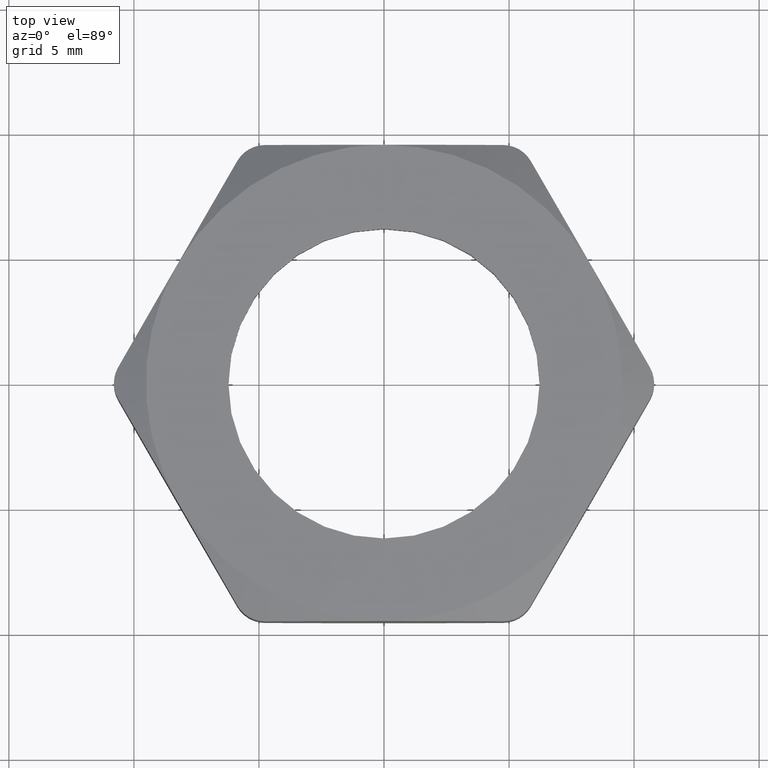
[diagram: clean part render]
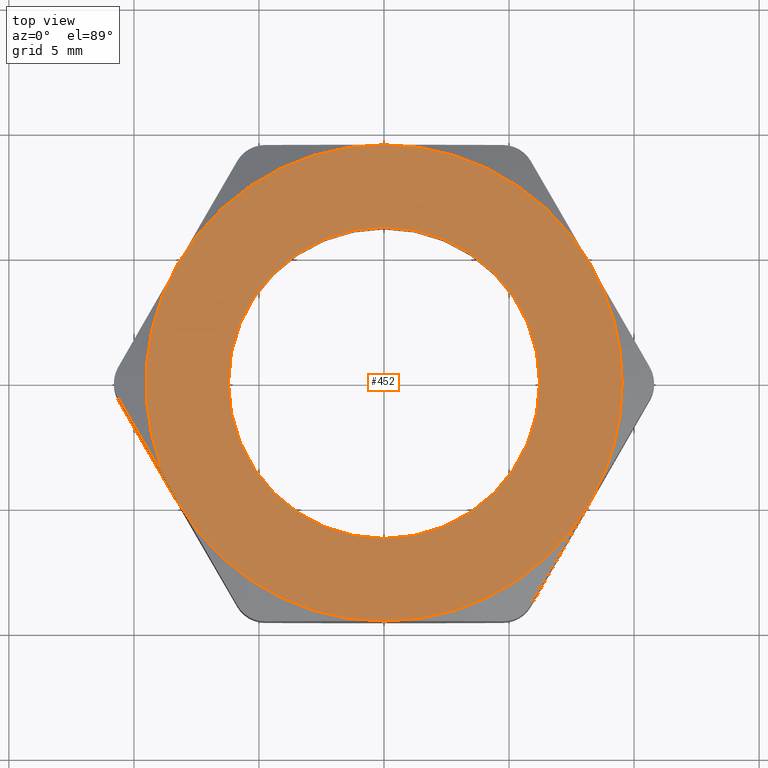
[diagram: same view with one face highlighted and labeled with its STEP entity id]
A machine part, top view. The second image highlights one B-rep face of the part: STEP entity #452.
In plain terms, the highlighted planar face has unit normal (0, 0, -1).
Its self-contained STEP definition (entity closure, byte-faithful):
#78 = EDGE_CURVE ( 'NONE', #79, #80, #995, .T. ) ;
#79 = VERTEX_POINT ( 'NONE', #991 ) ;
#80 = VERTEX_POINT ( 'NONE', #990 ) ;
#245 = VERTEX_POINT ( 'NONE', #1183 ) ;
#270 = VERTEX_POINT ( 'NONE', #1376 ) ;
#280 = VERTEX_POINT ( 'NONE', #1335 ) ;
#291 = VERTEX_POINT ( 'NONE', #1309 ) ;
#341 = VERTEX_POINT ( 'NONE', #1496 ) ;
#393 = VERTEX_POINT ( 'NONE', #1705 ) ;
#403 = VERTEX_POINT ( 'NONE', #1694 ) ;
#452 = ADVANCED_FACE ( 'NONE', ( #1507, #1506 ), #1503, .F. ) ;
#462 = EDGE_CURVE ( 'NONE', #393, #280, #1668, .T. ) ;
#521 = EDGE_CURVE ( 'NONE', #403, #291, #1807, .T. ) ;
#522 = ORIENTED_EDGE ( 'NONE', *, *, #588, .T. ) ;
#524 = ORIENTED_EDGE ( 'NONE', *, *, #587, .F. ) ;
#546 = EDGE_CURVE ( 'NONE', #270, #393, #1954, .T. ) ;
#547 = ORIENTED_EDGE ( 'NONE', *, *, #462, .T. ) ;
#548 = ORIENTED_EDGE ( 'NONE', *, *, #549, .T. ) ;
#549 = EDGE_CURVE ( 'NONE', #280, #341, #1879, .T. ) ;
#550 = EDGE_LOOP ( 'NONE', ( #551, #555, #522, #589, #591, #547, #548 ) ) ;
#551 = ORIENTED_EDGE ( 'NONE', *, *, #554, .T. ) ;
#554 = EDGE_CURVE ( 'NONE', #341, #403, #1870, .T. ) ;
#555 = ORIENTED_EDGE ( 'NONE', *, *, #521, .T. ) ;
#582 = ORIENTED_EDGE ( 'NONE', *, *, #78, .F. ) ;
#587 = EDGE_CURVE ( 'NONE', #80, #79, #1745, .T. ) ;
#588 = EDGE_CURVE ( 'NONE', #291, #245, #1477, .T. ) ;
#589 = ORIENTED_EDGE ( 'NONE', *, *, #590, .T. ) ;
#590 = EDGE_CURVE ( 'NONE', #245, #270, #2100, .T. ) ;
#591 = ORIENTED_EDGE ( 'NONE', *, *, #546, .T. ) ;
#596 = EDGE_LOOP ( 'NONE', ( #582, #524 ) ) ;
#990 = CARTESIAN_POINT ( 'NONE',  ( 0.2450000000000000000, 3.122849337825749900E-017, 0.2000000000000000100 ) ) ;
#991 = CARTESIAN_POINT ( 'NONE',  ( -0.2450000000000000000, 0.0000000000000000000, 0.2000000000000000100 ) ) ;
#992 = DIRECTION ( 'NONE',  ( 1.000000000000000000, 0.0000000000000000000, 0.0000000000000000000 ) ) ;
#993 = DIRECTION ( 'NONE',  ( 0.0000000000000000000, 0.0000000000000000000, 1.000000000000000000 ) ) ;
#994 = AXIS2_PLACEMENT_3D ( 'NONE', #1001, #993, #992 ) ;
#995 = CIRCLE ( 'NONE', #994, 0.2450000000000000000 ) ;
#1001 = CARTESIAN_POINT ( 'NONE',  ( 0.0000000000000000000, 0.0000000000000000000, 0.2000000000000000100 ) ) ;
#1183 = CARTESIAN_POINT ( 'NONE',  ( 5.914624404476998900E-017, -0.3749999999999998900, 0.2000000000000000100 ) ) ;
#1196 = DIRECTION ( 'NONE',  ( 1.000000000000000000, 0.0000000000000000000, 0.0000000000000000000 ) ) ;
#1309 = CARTESIAN_POINT ( 'NONE',  ( -0.3247595264191646700, -0.1875000000000000300, 0.2000000000000000100 ) ) ;
#1335 = CARTESIAN_POINT ( 'NONE',  ( 0.3247595264191647200, 0.1875000000000000600, 0.2000000000000000100 ) ) ;
#1376 = CARTESIAN_POINT ( 'NONE',  ( 0.3247595264191646100, -0.1875000000000000600, 0.2000000000000000100 ) ) ;
#1477 = CIRCLE ( 'NONE', #1661, 0.3750000000000001100 ) ;
#1496 = CARTESIAN_POINT ( 'NONE',  ( 0.0000000000000000000, 0.3750000000000001100, 0.2000000000000000100 ) ) ;
#1503 = PLANE ( 'NONE',  #1556 ) ;
#1504 = CARTESIAN_POINT ( 'NONE',  ( -0.2165063509461097000, 0.3750000000000001100, 0.2000000000000000100 ) ) ;
#1506 = FACE_OUTER_BOUND ( 'NONE', #550, .T. ) ;
#1507 = FACE_BOUND ( 'NONE', #596, .T. ) ;
#1554 = DIRECTION ( 'NONE',  ( -1.000000000000000000, 0.0000000000000000000, 0.0000000000000000000 ) ) ;
#1555 = DIRECTION ( 'NONE',  ( 0.0000000000000000000, 0.0000000000000000000, -1.000000000000000000 ) ) ;
#1556 = AXIS2_PLACEMENT_3D ( 'NONE', #1504, #1555, #1554 ) ;
#1659 = DIRECTION ( 'NONE',  ( 0.0000000000000000000, 0.0000000000000000000, 1.000000000000000000 ) ) ;
#1660 = CARTESIAN_POINT ( 'NONE',  ( 0.0000000000000000000, 0.0000000000000000000, 0.2000000000000000100 ) ) ;
#1661 = AXIS2_PLACEMENT_3D ( 'NONE', #1660, #1659, #1196 ) ;
#1662 = DIRECTION ( 'NONE',  ( 1.000000000000000000, 0.0000000000000000000, 0.0000000000000000000 ) ) ;
#1663 = DIRECTION ( 'NONE',  ( 0.0000000000000000000, 0.0000000000000000000, 1.000000000000000000 ) ) ;
#1664 = CARTESIAN_POINT ( 'NONE',  ( 0.0000000000000000000, 0.0000000000000000000, 0.2000000000000000100 ) ) ;
#1665 = AXIS2_PLACEMENT_3D ( 'NONE', #1664, #1663, #1662 ) ;
#1668 = CIRCLE ( 'NONE', #1665, 0.3750000000000001100 ) ;
#1694 = CARTESIAN_POINT ( 'NONE',  ( -0.3247595264191646700, 0.1875000000000001100, 0.2000000000000000100 ) ) ;
#1705 = CARTESIAN_POINT ( 'NONE',  ( 0.3750000000000001100, 0.0000000000000000000, 0.2000000000000000100 ) ) ;
#1739 = DIRECTION ( 'NONE',  ( 1.000000000000000000, 0.0000000000000000000, 0.0000000000000000000 ) ) ;
#1740 = DIRECTION ( 'NONE',  ( 0.0000000000000000000, 0.0000000000000000000, 1.000000000000000000 ) ) ;
#1741 = CARTESIAN_POINT ( 'NONE',  ( 0.0000000000000000000, 0.0000000000000000000, 0.2000000000000000100 ) ) ;
#1742 = AXIS2_PLACEMENT_3D ( 'NONE', #1741, #1740, #1739 ) ;
#1745 = CIRCLE ( 'NONE', #1742, 0.2450000000000000000 ) ;
#1803 = DIRECTION ( 'NONE',  ( 1.000000000000000000, 0.0000000000000000000, 0.0000000000000000000 ) ) ;
#1804 = DIRECTION ( 'NONE',  ( 0.0000000000000000000, 0.0000000000000000000, 1.000000000000000000 ) ) ;
#1805 = CARTESIAN_POINT ( 'NONE',  ( 0.0000000000000000000, 0.0000000000000000000, 0.2000000000000000100 ) ) ;
#1806 = AXIS2_PLACEMENT_3D ( 'NONE', #1805, #1804, #1803 ) ;
#1807 = CIRCLE ( 'NONE', #1806, 0.3750000000000001100 ) ;
#1866 = DIRECTION ( 'NONE',  ( 1.000000000000000000, 0.0000000000000000000, 0.0000000000000000000 ) ) ;
#1867 = DIRECTION ( 'NONE',  ( 0.0000000000000000000, 0.0000000000000000000, 1.000000000000000000 ) ) ;
#1868 = CARTESIAN_POINT ( 'NONE',  ( 0.0000000000000000000, 0.0000000000000000000, 0.2000000000000000100 ) ) ;
#1869 = AXIS2_PLACEMENT_3D ( 'NONE', #1868, #1867, #1866 ) ;
#1870 = CIRCLE ( 'NONE', #1869, 0.3750000000000001100 ) ;
#1876 = DIRECTION ( 'NONE',  ( 1.000000000000000000, 0.0000000000000000000, 0.0000000000000000000 ) ) ;
#1877 = DIRECTION ( 'NONE',  ( 0.0000000000000000000, 0.0000000000000000000, 1.000000000000000000 ) ) ;
#1878 = AXIS2_PLACEMENT_3D ( 'NONE', #1955, #1877, #1876 ) ;
#1879 = CIRCLE ( 'NONE', #1878, 0.3750000000000001100 ) ;
#1880 = DIRECTION ( 'NONE',  ( 1.000000000000000000, 0.0000000000000000000, 0.0000000000000000000 ) ) ;
#1881 = DIRECTION ( 'NONE',  ( 0.0000000000000000000, 0.0000000000000000000, 1.000000000000000000 ) ) ;
#1882 = CARTESIAN_POINT ( 'NONE',  ( 0.0000000000000000000, 0.0000000000000000000, 0.2000000000000000100 ) ) ;
#1953 = AXIS2_PLACEMENT_3D ( 'NONE', #1882, #1881, #1880 ) ;
#1954 = CIRCLE ( 'NONE', #1953, 0.3750000000000001100 ) ;
#1955 = CARTESIAN_POINT ( 'NONE',  ( 0.0000000000000000000, 0.0000000000000000000, 0.2000000000000000100 ) ) ;
#2096 = DIRECTION ( 'NONE',  ( 1.000000000000000000, 0.0000000000000000000, 0.0000000000000000000 ) ) ;
#2097 = DIRECTION ( 'NONE',  ( 0.0000000000000000000, 0.0000000000000000000, 1.000000000000000000 ) ) ;
#2098 = CARTESIAN_POINT ( 'NONE',  ( 0.0000000000000000000, 0.0000000000000000000, 0.2000000000000000100 ) ) ;
#2099 = AXIS2_PLACEMENT_3D ( 'NONE', #2098, #2097, #2096 ) ;
#2100 = CIRCLE ( 'NONE', #2099, 0.3750000000000001100 ) ;